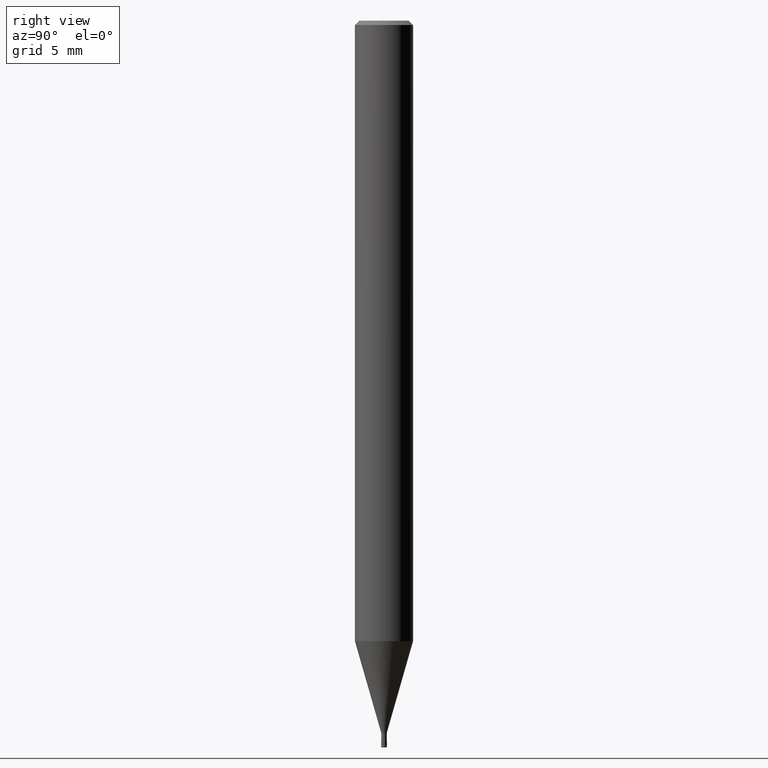
[diagram: clean part render]
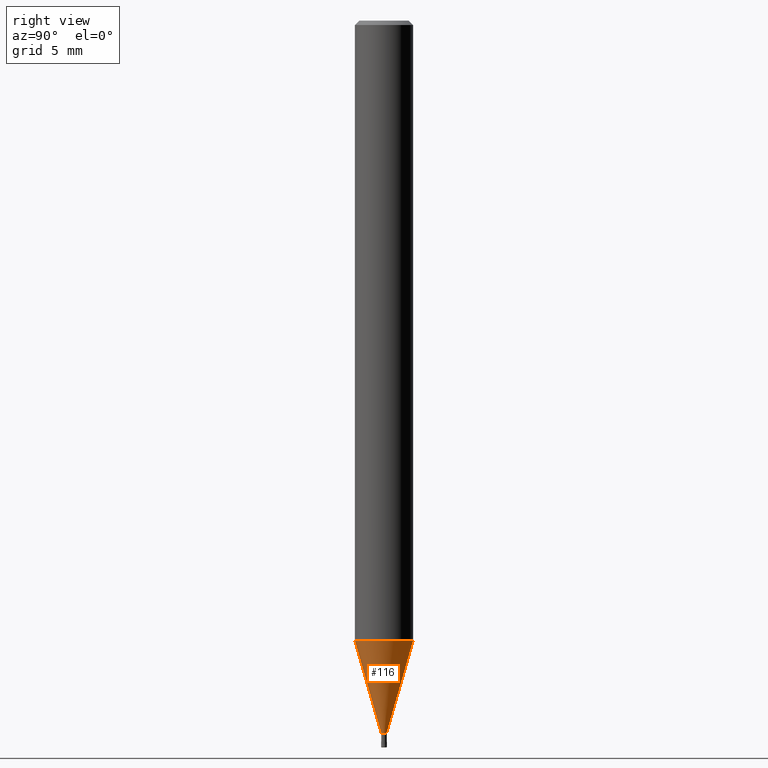
[diagram: same view with one face highlighted and labeled with its STEP entity id]
A machine part, right view. The second image highlights one B-rep face of the part: STEP entity #116.
In plain terms, the highlighted conical surface has half-angle 16.001 deg.
Its self-contained STEP definition (entity closure, byte-faithful):
#104=EDGE_CURVE('',#138,#226,#257,.T.);
#116=ADVANCED_FACE('',(#270),#271,.T.);
#138=VERTEX_POINT('',#297);
#150=EDGE_CURVE('',#138,#192,#310,.T.);
#186=EDGE_CURVE('',#190,#192,#352,.T.);
#190=VERTEX_POINT('',#357);
#192=VERTEX_POINT('',#359);
#202=EDGE_CURVE('',#226,#190,#370,.T.);
#226=VERTEX_POINT('',#397);
#257=LINE('',#421,#422);
#270=FACE_OUTER_BOUND('',#436,.T.);
#271=CONICAL_SURFACE('',#437,1.09495,0.279261921280279);
#297=CARTESIAN_POINT('',(0.0,1.99995,-42.688));
#310=CIRCLE('',#487,1.99995);
#352=LINE('',#542,#543);
#357=CARTESIAN_POINT('',(2.3261397690856E-017,-0.18995,-49.0));
#359=CARTESIAN_POINT('',(2.44915147732706E-016,-1.99995,-42.688));
#370=CIRCLE('',#565,0.18995);
#397=CARTESIAN_POINT('',(0.0,0.18995,-49.0));
#421=CARTESIAN_POINT('',(-1.34088272711781E-016,1.09495,-45.844));
#422=VECTOR('',#606,1.0);
#436=EDGE_LOOP('',(#619,#620,#621,#622));
#437=AXIS2_PLACEMENT_3D('',#623,#624,#625);
#487=AXIS2_PLACEMENT_3D('',#677,#678,#679);
#542=CARTESIAN_POINT('',(1.34088272711781E-016,-1.09495,-45.844));
#543=VECTOR('',#739,1.0);
#565=AXIS2_PLACEMENT_3D('',#758,#759,#760);
#606=DIRECTION('',(3.37558135426109E-017,-0.275646238787252,-0.961259148743169));
#619=ORIENTED_EDGE('',*,*,#104,.F.);
#620=ORIENTED_EDGE('',*,*,#150,.T.);
#621=ORIENTED_EDGE('',*,*,#186,.F.);
#622=ORIENTED_EDGE('',*,*,#202,.F.);
#623=CARTESIAN_POINT('',(0.0,0.0,-45.844));
#624=DIRECTION('',(-0.0,-0.0,1.0));
#625=DIRECTION('',(0.0,1.0,0.0));
#677=CARTESIAN_POINT('',(0.0,0.0,-42.688));
#678=DIRECTION('',(0.0,0.0,-1.0));
#679=DIRECTION('',(0.0,1.0,0.0));
#739=DIRECTION('',(3.37558135426109E-017,-0.275646238787252,0.961259148743169));
#758=CARTESIAN_POINT('',(0.0,0.0,-49.0));
#759=DIRECTION('',(0.0,0.0,-1.0));
#760=DIRECTION('',(0.0,1.0,0.0));